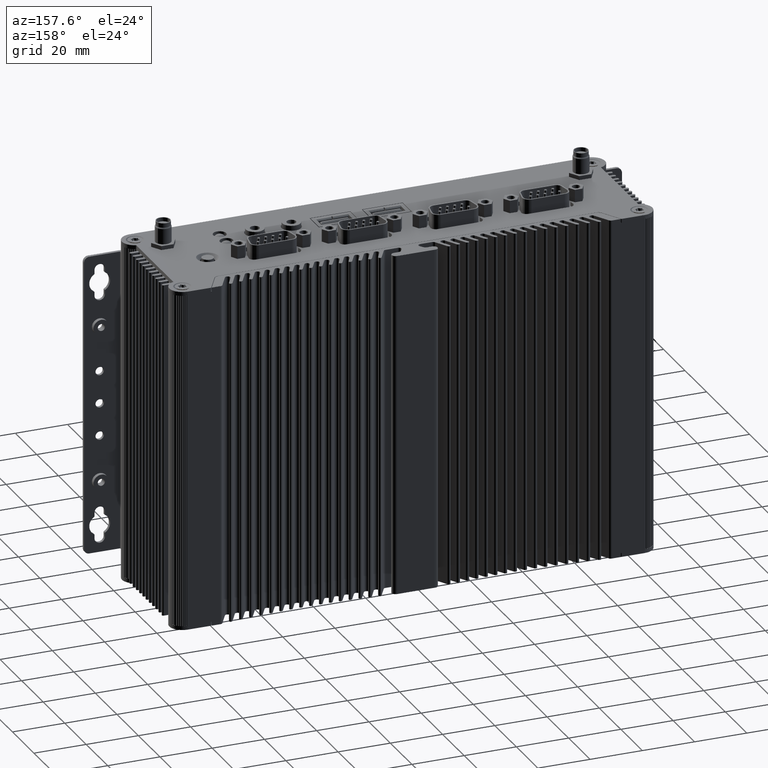
[diagram: clean part render]
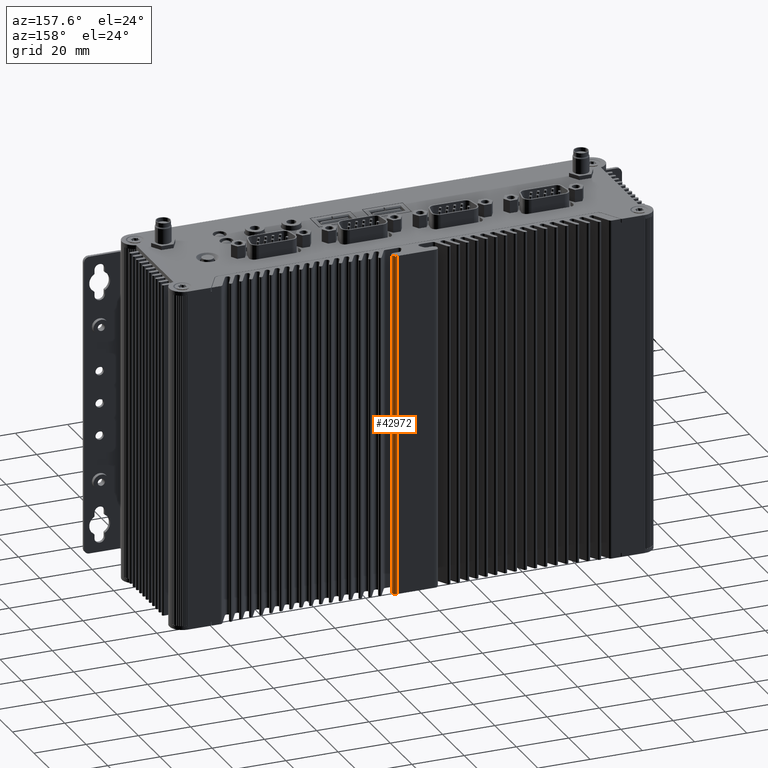
[diagram: same view with one face highlighted and labeled with its STEP entity id]
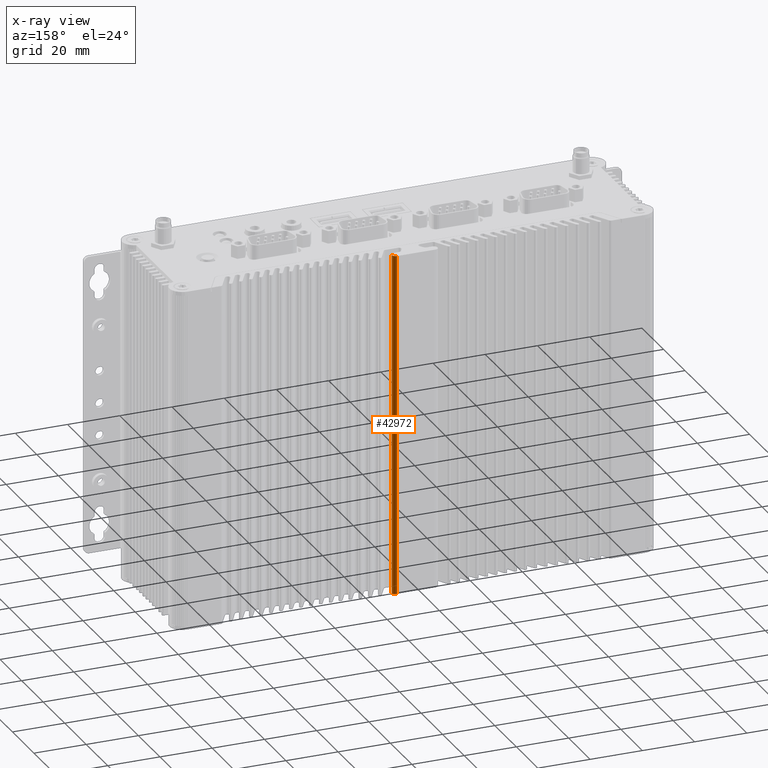
[diagram: x-ray of the same camera — body ghosted, the highlighted face saturated]
A machine part, auxiliary view. The second image highlights one B-rep face of the part: STEP entity #42972.
The next image is the same camera in x-ray: the body ghosted, the highlighted face saturated — about 0% of this face is hidden behind the body in this view.
In plain terms, the highlighted cylindrical surface (edge-blend (fillet) strip) has radius 1.5 mm, axis along (0, 0, 1).
Its self-contained STEP definition (entity closure, byte-faithful):
#5910 = EDGE_CURVE ( 'NONE', #20862, #20662, #78175, .T. ) ;
#5912 = EDGE_CURVE ( 'NONE', #55382, #20862, #81123, .T. ) ;
#5913 = EDGE_CURVE ( 'NONE', #55365, #20662, #81125, .T. ) ;
#6063 = EDGE_CURVE ( 'NONE', #55382, #55365, #79858, .T. ) ;
#14460 = EDGE_LOOP ( 'NONE', ( #51888, #52541, #51882, #51874 ) ) ;
#18984 = VECTOR ( 'NONE', #79875, 1000.000000000000000 ) ;
#20662 = VERTEX_POINT ( 'NONE', #41294 ) ;
#20862 = VERTEX_POINT ( 'NONE', #41457 ) ;
#41294 = CARTESIAN_POINT ( 'NONE',  ( 35.53852002450644000, 18.38363050396861500, 1.863786902589481500E-011 ) ) ;
#41457 = CARTESIAN_POINT ( 'NONE',  ( 35.53852002450644000, 18.38363050396861500, -130.9999999999813600 ) ) ;
#42972 = ADVANCED_FACE ( 'NONE', ( #85277 ), #85279, .T. ) ;
#43594 = AXIS2_PLACEMENT_3D ( 'NONE', #85278, #85273, #85280 ) ;
#51874 = ORIENTED_EDGE ( 'NONE', *, *, #5913, .F. ) ;
#51882 = ORIENTED_EDGE ( 'NONE', *, *, #5910, .T. ) ;
#51888 = ORIENTED_EDGE ( 'NONE', *, *, #6063, .F. ) ;
#52541 = ORIENTED_EDGE ( 'NONE', *, *, #5912, .T. ) ;
#55365 = VERTEX_POINT ( 'NONE', #91348 ) ;
#55382 = VERTEX_POINT ( 'NONE', #91365 ) ;
#78175 = LINE ( 'NONE', #78180, #81116 ) ;
#78180 = CARTESIAN_POINT ( 'NONE',  ( 35.53852002450644000, 18.38363050396861500, -130.9999999999813600 ) ) ;
#78183 = DIRECTION ( 'NONE',  ( 0.0000000000000000000, 0.0000000000000000000, 1.000000000000000000 ) ) ;
#78203 = CARTESIAN_POINT ( 'NONE',  ( 35.53852002450644000, 16.88363072371867800, -130.9999999999813600 ) ) ;
#78205 = DIRECTION ( 'NONE',  ( -0.0000000000000000000, 0.0000000000000000000, 1.000000000000000000 ) ) ;
#78208 = DIRECTION ( 'NONE',  ( 1.000000000000000000, 0.0000000000000000000, 0.0000000000000000000 ) ) ;
#78215 = CARTESIAN_POINT ( 'NONE',  ( 35.53852002450644000, 16.88363072371867800, 1.863786902589481500E-011 ) ) ;
#78217 = DIRECTION ( 'NONE',  ( -0.0000000000000000000, 0.0000000000000000000, 1.000000000000000000 ) ) ;
#78219 = DIRECTION ( 'NONE',  ( 1.000000000000000000, 0.0000000000000000000, 0.0000000000000000000 ) ) ;
#79858 = LINE ( 'NONE', #79872, #18984 ) ;
#79872 = CARTESIAN_POINT ( 'NONE',  ( 37.03851980475641900, 16.88363072371867800, -130.9999999999813600 ) ) ;
#79875 = DIRECTION ( 'NONE',  ( 0.0000000000000000000, 0.0000000000000000000, 1.000000000000000000 ) ) ;
#81116 = VECTOR ( 'NONE', #78183, 1000.000000000000000 ) ;
#81123 = CIRCLE ( 'NONE', #81128, 1.499999780249977600 ) ;
#81125 = CIRCLE ( 'NONE', #81134, 1.499999780249977600 ) ;
#81128 = AXIS2_PLACEMENT_3D ( 'NONE', #78203, #78205, #78208 ) ;
#81134 = AXIS2_PLACEMENT_3D ( 'NONE', #78215, #78217, #78219 ) ;
#85273 = DIRECTION ( 'NONE',  ( 0.0000000000000000000, 0.0000000000000000000, 1.000000000000000000 ) ) ;
#85277 = FACE_OUTER_BOUND ( 'NONE', #14460, .T. ) ;
#85278 = CARTESIAN_POINT ( 'NONE',  ( 35.53852002450644000, 16.88363072371867800, -130.9999999999813600 ) ) ;
#85279 = CYLINDRICAL_SURFACE ( 'NONE', #43594, 1.499999780249977600 ) ;
#85280 = DIRECTION ( 'NONE',  ( 1.000000000000000000, 0.0000000000000000000, 0.0000000000000000000 ) ) ;
#91348 = CARTESIAN_POINT ( 'NONE',  ( 37.03851980475641900, 16.88363072371867800, 1.863786902589481500E-011 ) ) ;
#91365 = CARTESIAN_POINT ( 'NONE',  ( 37.03851980475641900, 16.88363072371867800, -130.9999999999813600 ) ) ;